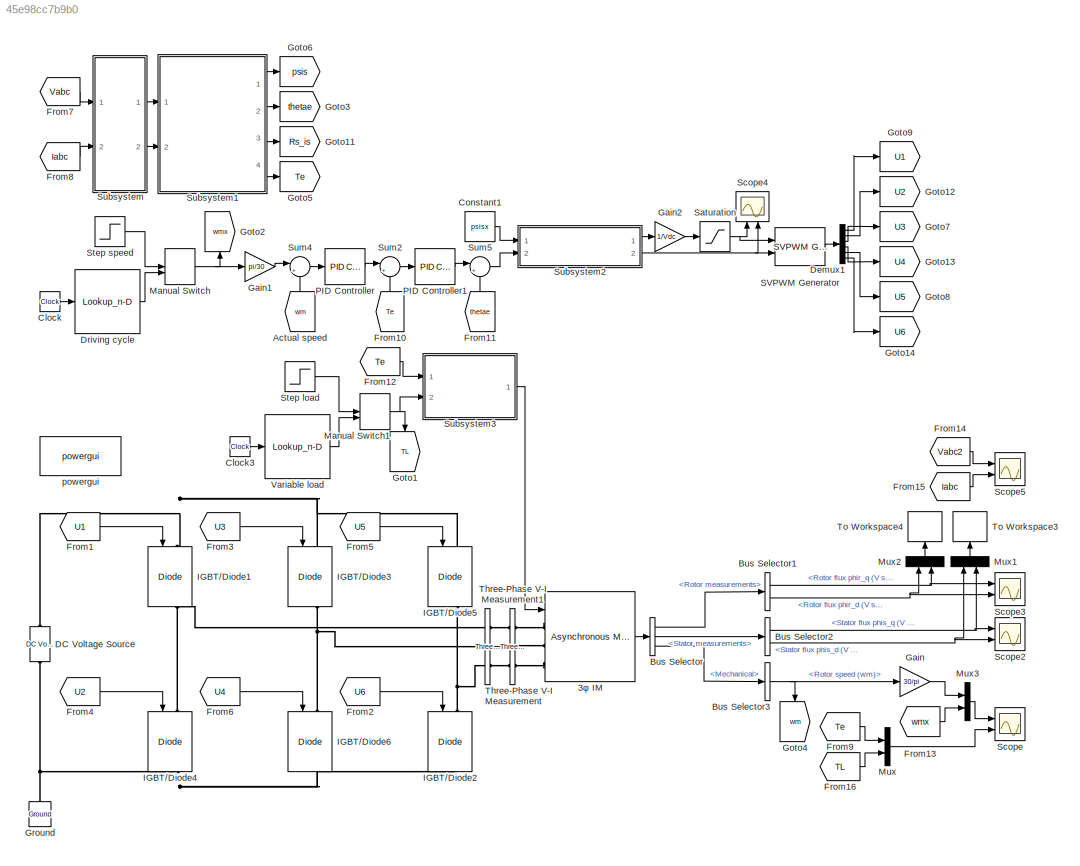
MODEL slx_45e98cc7b9b0
KIND model
CONFIG InitFcn = Ts=10e-7;\npsisx=0.996;\nVdc=600;\nTs_SVPWM=1e-4;
CONFIG StopFcn = plot(fs(:,1),fs(:,2),'-r',fr(:,1),fr(:,2),'-b');\naxis equal;\ngrid on;\ntitle('Flux Space Vector Trajectory');\ntext(.8,-.85,'rotor flux','color','b');\ntext(-1,-.85,'stator flux','color','r');
BLOCK [Reference] 3φ IM  REF=powerlib/Machines/Asynchronous Machine
SI Units
  Cage1 = [0.4155 0.002066]
  Cage2 = [0.4168 0.0003495]
  InitialConditions = [1 0 0 0 0 0 0 0]
  IterativeDiscreteModel = Trapezoidal non iterative
  IterativeModel = Trapezoidal non iterative
  Lm = 0.1722
  LoadFlowParameters = 1492000
  MeasurementBus = off
  Mechanical = [0.0131 0.002985 2]
  MechanicalLoad = Speed w
  NominalParameters = [4000 400 50]
  Pmec = 1.492e+006
  PolePairs = 2
  Ports = [1, 1, 0, 0, 0, 3]
  PresetModel = 15:  5.4 HP (4KW)   400 V  50Hz 1430 RPM
  ReferenceFrame = Stationary
  Rotor = [1.395 0.005839]
  RotorType = Squirrel-cage
  Saturation = [14.03593122, 27.81365428, 53.79336849, 72.68890987, 97.98006896, 148.6815601, 215.7428561, 302.9841135, 428.7778367 ; 230, 322, 414, 460, 506, 552, 598, 644, 690]
  ShowDetailedParameters = on
  SimulateSaturation = off
  SourceBlock = powerlib/Machines/Asynchronous Machine\nSI Units
  SourceType = Asynchronous Machine
  Stator = [1.405 0.005839]
  TsBlock = -1
  TsPowergui = 0
  Units = SI
BLOCK [From] Actual speed
  GotoTag = wm
BLOCK [BusSelector] Bus Selector
  OutputSignals = Rotor measurements,Stator measurements,Mechanical
  Ports = [1, 3]
BLOCK [BusSelector] Bus Selector1
  OutputSignals = Rotor flux phir_q (V s),Rotor flux phir_d (V s)
  Ports = [1, 2]
BLOCK [BusSelector] Bus Selector2
  OutputSignals = Stator flux phis_q (V s),Stator flux phis_d (V s)
  Ports = [1, 2]
BLOCK [BusSelector] Bus Selector3
  OutputSignals = Rotor speed (wm)
  Ports = [1, 1]
BLOCK [Clock] Clock
BLOCK [Clock] Clock3
BLOCK [Constant] Constant1
  Value = psisx
BLOCK [Reference] DC Voltage Source  REF=powerlib/Electrical
Sources/DC Voltage Source
  Amplitude = Vdc
  Measurements = None
  Ports = [0, 0, 0, 0, 0, 1, 1]
  SourceBlock = powerlib/Electrical\nSources/DC Voltage Source
  SourceType = DC Voltage Source
BLOCK [Demux] Demux1
  DisplayOption = bar
  Outputs = 6
  Ports = [1, 6]
BLOCK [Lookup_n-D] Driving cycle
  BreakpointsForDimension1 = [0 1 2 5 5.001 8 8.001 10 11 12]/2
  NumberOfTableDimensions = 1
  Ports = [1, 1]
  RndMeth = Simplest
  Table = [0 0 480 480 1430 1430 0 0 480 480]
BLOCK [From] From1
  GotoTag = U1
BLOCK [From] From10
  GotoTag = Te
BLOCK [From] From11
  GotoTag = thetae
BLOCK [From] From12
  GotoTag = Te
BLOCK [From] From13
  GotoTag = wmx
BLOCK [From] From14
  GotoTag = Vabc2
  TagVisibility = global
BLOCK [From] From15
  GotoTag = Iabc
  TagVisibility = global
BLOCK [From] From16
  GotoTag = TL
BLOCK [From] From2
  GotoTag = U6
BLOCK [From] From3
  GotoTag = U3
BLOCK [From] From4
  GotoTag = U2
BLOCK [From] From5
  GotoTag = U5
BLOCK [From] From6
  GotoTag = U4
BLOCK [From] From7
  GotoTag = Vabc
  TagVisibility = global
BLOCK [From] From8
  GotoTag = Iabc
  TagVisibility = global
BLOCK [From] From9
  GotoTag = Te
BLOCK [Gain] Gain
  Gain = 30/pi
  OutDataTypeStr = Inherit: Inherit via internal rule
  ParamDataTypeStr = Inherit: Inherit via internal rule
  SaturateOnIntegerOverflow = off
BLOCK [Gain] Gain1
  Gain = pi/30
  OutDataTypeStr = Inherit: Inherit via internal rule
  ParamDataTypeStr = Inherit: Inherit via internal rule
  SaturateOnIntegerOverflow = off
BLOCK [Gain] Gain2
  Gain = 1/Vdc
  OutDataTypeStr = Inherit: Inherit via internal rule
  ParamDataTypeStr = Inherit: Inherit via internal rule
  SaturateOnIntegerOverflow = off
BLOCK [Goto] Goto1
  GotoTag = TL
BLOCK [Goto] Goto11
  GotoTag = Rs_is
  TagVisibility = global
BLOCK [Goto] Goto12
  GotoTag = U2
BLOCK [Goto] Goto13
  GotoTag = U4
BLOCK [Goto] Goto14
  GotoTag = U6
BLOCK [Goto] Goto2
  GotoTag = wmx
BLOCK [Goto] Goto3
  GotoTag = thetae
BLOCK [Goto] Goto4
  GotoTag = wm
BLOCK [Goto] Goto5
  GotoTag = Te
BLOCK [Goto] Goto6
  GotoTag = psis
  TagVisibility = global
BLOCK [Goto] Goto7
  GotoTag = U3
BLOCK [Goto] Goto8
  GotoTag = U5
BLOCK [Goto] Goto9
  GotoTag = U1
BLOCK [Reference] Ground  REF=powerlib/Elements/Ground
  LConnTagsString = a
  Ports = [0, 0, 0, 0, 0, 1]
  SourceBlock = powerlib/Elements/Ground
  SourceType = Ground
BLOCK [Reference] IGBT//Diode1  REF=powerlib/Power
Electronics/IGBT//Diode
  Cs = inf
  Measurements = on
  Ports = [1, 1, 0, 0, 0, 1, 1]
  Ron = 1e-3
  Rs = 1e5
  SourceBlock = powerlib/Power\nElectronics/IGBT//Diode
  SourceType = IGBT/Diode
BLOCK [Reference] IGBT//Diode2  REF=powerlib/Power
Electronics/IGBT//Diode
  Cs = inf
  Measurements = on
  Ports = [1, 1, 0, 0, 0, 1, 1]
  Ron = 1e-3
  Rs = 1e5
  SourceBlock = powerlib/Power\nElectronics/IGBT//Diode
  SourceType = IGBT/Diode
BLOCK [Reference] IGBT//Diode3  REF=powerlib/Power
Electronics/IGBT//Diode
  Cs = inf
  Measurements = on
  Ports = [1, 1, 0, 0, 0, 1, 1]
  Ron = 1e-3
  Rs = 1e5
  SourceBlock = powerlib/Power\nElectronics/IGBT//Diode
  SourceType = IGBT/Diode
BLOCK [Reference] IGBT//Diode4  REF=powerlib/Power
Electronics/IGBT//Diode
  Cs = inf
  Measurements = on
  Ports = [1, 1, 0, 0, 0, 1, 1]
  Ron = 1e-3
  Rs = 1e5
  SourceBlock = powerlib/Power\nElectronics/IGBT//Diode
  SourceType = IGBT/Diode
BLOCK [Reference] IGBT//Diode5  REF=powerlib/Power
Electronics/IGBT//Diode
  Cs = inf
  Measurements = on
  Ports = [1, 1, 0, 0, 0, 1, 1]
  Ron = 1e-3
  Rs = 1e5
  SourceBlock = powerlib/Power\nElectronics/IGBT//Diode
  SourceType = IGBT/Diode
BLOCK [Reference] IGBT//Diode6  REF=powerlib/Power
Electronics/IGBT//Diode
  Cs = inf
  Measurements = on
  Ports = [1, 1, 0, 0, 0, 1, 1]
  Ron = 1e-3
  Rs = 1e5
  SourceBlock = powerlib/Power\nElectronics/IGBT//Diode
  SourceType = IGBT/Diode
BLOCK [ManualSwitch] Manual Switch
BLOCK [ManualSwitch] Manual Switch1
BLOCK [Mux] Mux
  DisplayOption = bar
  Inputs = 2
  Ports = [2, 1]
BLOCK [Mux] Mux1
  DisplayOption = bar
  Inputs = 2
  Ports = [2, 1]
BLOCK [Mux] Mux2
  DisplayOption = bar
  Inputs = 2
  Ports = [2, 1]
BLOCK [Mux] Mux3
  DisplayOption = bar
  Inputs = 2
  Ports = [2, 1]
BLOCK [Reference] PID Controller  REF=simulink/Continuous/PID Controller
  AntiWindupMode = clamping
  Controller = P
  ControllerParametersSource = internal
  D = 0
  DGainOutDataTypeStr = Inherit: Inherit via internal rule
  DOutDataTypeStr = Inherit: Inherit via internal rule
  DOutMax = []
  DOutMin = []
  DParamDataTypeStr = Inherit: Inherit via internal rule
  DParamMax = []
  DParamMin = []
  DProdOutDataTypeStr = Inherit: Inherit via internal rule
  DifferentiatorICPrevScaledInput = 0
  DifferentiatorOutDataTypeStr = Inherit: Inherit via internal rule
  DifferentiatorOutMax = []
  DifferentiatorOutMin = []
  ExternalReset = none
  FilterContinuousStateAttributes = ''
  FilterMethod = Forward Euler
  FilterOutDataTypeStr = Inherit: Inherit via internal rule
  FilterOutMax = []
  FilterOutMin = []
  FilterRTWStateStorageClass = Auto
  FilterStateMustResolveToSignalObject = off
  Form = Parallel
  I = 20
  IGainOutDataTypeStr = Inherit: Inherit via internal rule
  IOutDataTypeStr = Inherit: Inherit via internal rule
  IOutMax = []
  IOutMin = []
  IParamDataTypeStr = Inherit: Inherit via internal rule
  IParamMax = []
  IParamMin = []
  IProdOutDataTypeStr = Inherit: Inherit via internal rule
  IgnoreLimit = off
  InitialConditionForFilter = 0
  InitialConditionForIntegrator = 0
  InitialConditionSource = internal
  IntegratorContinuousStateAttributes = ''
  IntegratorMethod = Forward Euler
  IntegratorOutDataTypeStr = Inherit: Inherit via internal rule
  IntegratorOutMax = []
  IntegratorOutMin = []
  IntegratorRTWStateStorageClass = Auto
  IntegratorStateMustResolveToSignalObject = off
  Kb = 1
  KbOutDataTypeStr = Inherit: Inherit via internal rule
  KbOutMax = []
  KbOutMin = []
  KbParamDataTypeStr = Inherit: Inherit via internal rule
  KbParamMax = []
  KbParamMin = []
  Kt = 1
  KtOutDataTypeStr = Inherit: Inherit via internal rule
  KtOutMax = []
  KtOutMin = []
  KtParamDataTypeStr = Inherit: Inherit via internal rule
  KtParamMax = []
  KtParamMin = []
  LimitOutput = on
  LinearizeAsGain = on
  LockScale = off
  LowerSaturationLimit = -30
  N = 100
  NGainOutDataTypeStr = Inherit: Inherit via internal rule
  NOutDataTypeStr = Inherit: Inherit via internal rule
  NOutMax = []
  NOutMin = []
  NParamDataTypeStr = Inherit: Inherit via internal rule
  NParamMax = []
  NParamMin = []
  NProdOutDataTypeStr = Inherit: Inherit via internal rule
  P = 20
  PGainOutDataTypeStr = Inherit: Inherit via internal rule
  POutDataTypeStr = Inherit: Inherit via internal rule
  POutMax = []
  POutMin = []
  PParamDataTypeStr = Inherit: Inherit via internal rule
  PParamMax = []
  PParamMin = []
  PProdOutDataTypeStr = Inherit: Inherit via internal rule
  Ports = [1, 1]
  RndMeth = Floor
  SampleTime = -1
  SaturateOnIntegerOverflow = off
  SaturationOutDataTypeStr = Inherit: Same as input
  SaturationOutMax = []
  SaturationOutMin = []
  SourceBlock = simulink/Continuous/PID Controller
  SourceType = PID 1dof
  SumAccumDataTypeStr = Inherit: Inherit via internal rule
  SumDAccumDataTypeStr = Inherit: Inherit via internal rule
  SumDOutDataTypeStr = Inherit: Inherit via internal rule
  SumDOutMax = []
  SumDOutMin = []
  SumI1AccumDataTypeStr = Inherit: Inherit via internal rule
  SumI1OutDataTypeStr = Inherit: Inherit via internal rule
  SumI1OutMax = []
  SumI1OutMin = []
  SumI2AccumDataTypeStr = Inherit: Inherit via internal rule
  SumI2OutDataTypeStr = Inherit: Inherit via internal rule
  SumI2OutMax = []
  SumI2OutMin = []
  SumI3AccumDataTypeStr = Inherit: Inherit via internal rule
  SumI3OutDataTypeStr = Inherit: Inherit via internal rule
  SumI3OutMax = []
  SumI3OutMin = []
  SumOutDataTypeStr = Inherit: Inherit via internal rule
  SumOutMax = []
  SumOutMin = []
  TimeDomain = Continuous-time
  TrackingMode = off
  UpperSaturationLimit = 30
  UseFilter = on
  ZeroCross = on
BLOCK [Reference] PID Controller1  REF=simulink/Continuous/PID Controller
  AntiWindupMode = clamping
  Controller = PI
  ControllerParametersSource = internal
  D = 0.00005
  DGainOutDataTypeStr = Inherit: Inherit via internal rule
  DOutDataTypeStr = Inherit: Inherit via internal rule
  DOutMax = []
  DOutMin = []
  DParamDataTypeStr = Inherit: Inherit via internal rule
  DParamMax = []
  DParamMin = []
  DProdOutDataTypeStr = Inherit: Inherit via internal rule
  DifferentiatorICPrevScaledInput = 0
  DifferentiatorOutDataTypeStr = Inherit: Inherit via internal rule
  DifferentiatorOutMax = []
  DifferentiatorOutMin = []
  ExternalReset = none
  FilterContinuousStateAttributes = ''
  FilterMethod = Forward Euler
  FilterOutDataTypeStr = Inherit: Inherit via internal rule
  FilterOutMax = []
  FilterOutMin = []
  FilterRTWStateStorageClass = Auto
  FilterStateMustResolveToSignalObject = off
  Form = Parallel
  I = 1
  IGainOutDataTypeStr = Inherit: Inherit via internal rule
  IOutDataTypeStr = Inherit: Inherit via internal rule
  IOutMax = []
  IOutMin = []
  IParamDataTypeStr = Inherit: Inherit via internal rule
  IParamMax = []
  IParamMin = []
  IProdOutDataTypeStr = Inherit: Inherit via internal rule
  IgnoreLimit = off
  InitialConditionForFilter = 0
  InitialConditionForIntegrator = 0
  InitialConditionSource = internal
  IntegratorContinuousStateAttributes = ''
  IntegratorMethod = Forward Euler
  IntegratorOutDataTypeStr = Inherit: Inherit via internal rule
  IntegratorOutMax = []
  IntegratorOutMin = []
  IntegratorRTWStateStorageClass = Auto
  IntegratorStateMustResolveToSignalObject = off
  Kb = 1
  KbOutDataTypeStr = Inherit: Inherit via internal rule
  KbOutMax = []
  KbOutMin = []
  KbParamDataTypeStr = Inherit: Inherit via internal rule
  KbParamMax = []
  KbParamMin = []
  Kt = 1
  KtOutDataTypeStr = Inherit: Inherit via internal rule
  KtOutMax = []
  KtOutMin = []
  KtParamDataTypeStr = Inherit: Inherit via internal rule
  KtParamMax = []
  KtParamMin = []
  LimitOutput = on
  LinearizeAsGain = on
  LockScale = off
  LowerSaturationLimit = -pi/2
  N = 100
  NGainOutDataTypeStr = Inherit: Inherit via internal rule
  NOutDataTypeStr = Inherit: Inherit via internal rule
  NOutMax = []
  NOutMin = []
  NParamDataTypeStr = Inherit: Inherit via internal rule
  NParamMax = []
  NParamMin = []
  NProdOutDataTypeStr = Inherit: Inherit via internal rule
  P = 0.005
  PGainOutDataTypeStr = Inherit: Inherit via internal rule
  POutDataTypeStr = Inherit: Inherit via internal rule
  POutMax = []
  POutMin = []
  PParamDataTypeStr = Inherit: Inherit via internal rule
  PParamMax = []
  PParamMin = []
  PProdOutDataTypeStr = Inherit: Inherit via internal rule
  Ports = [1, 1]
  RndMeth = Floor
  SampleTime = -1
  SaturateOnIntegerOverflow = off
  SaturationOutDataTypeStr = Inherit: Same as input
  SaturationOutMax = []
  SaturationOutMin = []
  SourceBlock = simulink/Continuous/PID Controller
  SourceType = PID 1dof
  SumAccumDataTypeStr = Inherit: Inherit via internal rule
  SumDAccumDataTypeStr = Inherit: Inherit via internal rule
  SumDOutDataTypeStr = Inherit: Inherit via internal rule
  SumDOutMax = []
  SumDOutMin = []
  SumI1AccumDataTypeStr = Inherit: Inherit via internal rule
  SumI1OutDataTypeStr = Inherit: Inherit via internal rule
  SumI1OutMax = []
  SumI1OutMin = []
  SumI2AccumDataTypeStr = Inherit: Inherit via internal rule
  SumI2OutDataTypeStr = Inherit: Inherit via internal rule
  SumI2OutMax = []
  SumI2OutMin = []
  SumI3AccumDataTypeStr = Inherit: Inherit via internal rule
  SumI3OutDataTypeStr = Inherit: Inherit via internal rule
  SumI3OutMax = []
  SumI3OutMin = []
  SumOutDataTypeStr = Inherit: Inherit via internal rule
  SumOutMax = []
  SumOutMin = []
  TimeDomain = Continuous-time
  TrackingMode = off
  UpperSaturationLimit = pi/2
  UseFilter = on
  ZeroCross = on
BLOCK [Reference] SVPWM Generator  REF=powerlib_meascontrol/Pulse & Signal
Generators/SVPWM Generator
(2-Level)
  Fc = 1/Ts_SVPWM
  InputType = Magnitude-Angle (rad)
  ParUref = [0.8 -30 50]
  Ports = [2, 1]
  SourceBlock = powerlib_meascontrol/Pulse & Signal\nGenerators/SVPWM Generator\n(2-Level)
  SourceType = SVPWM Generator (2-Level)
  SwitchingPattern = Pattern #1
  Ts = Ts
BLOCK [Saturate] Saturation
  InputPortMap = u0
  LowerLimit = 0
  Ports = [1, 1]
  UpperLimit = 1
BLOCK [Scope] Scope
  DataFormat = StructureWithTime
  Decimation = 1
  Floating = off
  Grid = on
  LimitDataPoints = off
  MaxDataPoints = 5000
  NumInputPorts = 2
  Ports = [2]
  SampleInput = off
  SampleTime = -1
  SaveName = ScopeData1
  SaveToWorkspace = off
  ShowLegends = off
  TickLabels = OneTimeTick
  TimeRange = auto
  YMax = 1350.00009~34.5966
  YMin = -150.00082~-3.93819
  ZoomMode = on
BLOCK [Scope] Scope2
  DataFormat = StructureWithTime
  Decimation = 1
  Floating = off
  Grid = on
  LimitDataPoints = off
  MaxDataPoints = 5000
  NumInputPorts = 2
  Ports = [2]
  SampleInput = off
  SampleTime = -1
  SaveName = ScopeData2
  SaveToWorkspace = off
  ShowLegends = off
  TickLabels = OneTimeTick
  TimeRange = auto
  YMax = 1.24881~1.24881
  YMin = -1.24882~-1.24882
  ZoomMode = on
BLOCK [Scope] Scope3
  DataFormat = StructureWithTime
  Decimation = 1
  Floating = off
  Grid = on
  LimitDataPoints = off
  MaxDataPoints = 5000
  NumInputPorts = 2
  Ports = [2]
  SampleInput = off
  SampleTime = -1
  SaveName = ScopeData3
  SaveToWorkspace = off
  ShowLegends = off
  TickLabels = OneTimeTick
  TimeRange = auto
  YMax = 1.20224~1.20224
  YMin = -1.20226~-1.20226
  ZoomMode = on
BLOCK [Scope] Scope4
  DataFormat = StructureWithTime
  Decimation = 1
  Floating = off
  Grid = on
  LimitDataPoints = off
  MaxDataPoints = 5000
  NumInputPorts = 2
  Ports = [2]
  SampleInput = off
  SampleTime = -1
  SaveName = ScopeData2
  SaveToWorkspace = off
  ShowLegends = off
  TickLabels = OneTimeTick
  TimeRange = auto
  YMax = 1.125~3.92699
  YMin = -0.12499~-3.92698
  ZoomMode = on
BLOCK [Scope] Scope5
  DataFormat = StructureWithTime
  Decimation = 1
  Floating = off
  Grid = on
  LimitDataPoints = off
  MaxDataPoints = 5e4
  NumInputPorts = 2
  Ports = [2]
  SampleInput = off
  SampleTime = -1
  SaveName = ScopeData1
  SaveToWorkspace = off
  ShowLegends = off
  TickLabels = OneTimeTick
  TimeRange = auto
  YMax = 750.02666~15.00000
  YMin = -750.02667~-15.00000
  ZoomMode = on
BLOCK [Step] Step load
  After = 12
  SampleTime = 0
  Time = 0.9
BLOCK [Step] Step speed
  After = 1200
  SampleTime = 0
  Time = 0.15
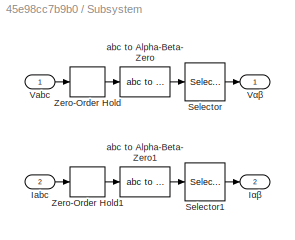
BLOCK [SubSystem] Subsystem
  FunctionWithSeparateData = off
  MaskHideContents = off
  MinAlgLoopOccurrences = off
  Opaque = off
  Ports = [2, 2]
  PropExecContextOutsideSubsystem = off
  RTWSystemCode = Auto
  RequestExecContextInheritance = off
BLOCK [Inport] Subsystem/Iabc
  IconDisplay = Port number
  Port = 2
BLOCK [Outport] Subsystem/Iαβ
  IconDisplay = Port number
  Port = 2
BLOCK [Selector] Subsystem/Selector
  IndexOptions = Index vector (dialog)
  Indices = [1 2]
  InputPortWidth = 3
  OutputSizes = 1
  Ports = [1, 1]
BLOCK [Selector] Subsystem/Selector1
  IndexOptions = Index vector (dialog)
  Indices = [1 2]
  InputPortWidth = 3
  OutputSizes = 1
  Ports = [1, 1]
BLOCK [Inport] Subsystem/Vabc
  IconDisplay = Port number
BLOCK [Outport] Subsystem/Vαβ
  IconDisplay = Port number
BLOCK [ZeroOrderHold] Subsystem/Zero-Order Hold
  SampleTime = Ts
BLOCK [ZeroOrderHold] Subsystem/Zero-Order Hold1
  SampleTime = Ts
BLOCK [Reference] Subsystem/abc to Alpha-Beta-Zero  REF=powerlib_meascontrol/Transformations/abc to
Alpha-Beta-Zero
  Ports = [1, 1]
  SourceBlock = powerlib_meascontrol/Transformations/abc to\nAlpha-Beta-Zero
  SourceType = abc to Alpha-Beta-Zero Transformation
BLOCK [Reference] Subsystem/abc to Alpha-Beta-Zero1  REF=powerlib_meascontrol/Transformations/abc to
Alpha-Beta-Zero
  Ports = [1, 1]
  SourceBlock = powerlib_meascontrol/Transformations/abc to\nAlpha-Beta-Zero
  SourceType = abc to Alpha-Beta-Zero Transformation
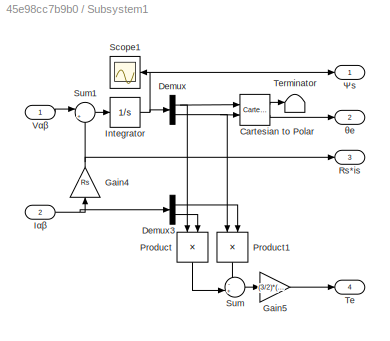
BLOCK [SubSystem] Subsystem1
  FunctionWithSeparateData = off
  MaskHideContents = off
  MinAlgLoopOccurrences = off
  Opaque = off
  Ports = [2, 4]
  PropExecContextOutsideSubsystem = off
  RTWSystemCode = Auto
  RequestExecContextInheritance = off
BLOCK [Reference] Subsystem1/Cartesian to Polar  REF=simulink_extras/Transformations/Cartesian to
Polar
  Ports = [2, 2]
  SourceBlock = simulink_extras/Transformations/Cartesian to\nPolar
  SourceType = Cart2Polar
BLOCK [Demux] Subsystem1/Demux
  DisplayOption = bar
  Outputs = 2
  Ports = [1, 2]
BLOCK [Demux] Subsystem1/Demux3
  DisplayOption = bar
  Outputs = 2
  Ports = [1, 2]
BLOCK [Gain] Subsystem1/Gain4
  Gain = Rs
  OutDataTypeStr = Inherit: Inherit via internal rule
  ParamDataTypeStr = Inherit: Inherit via internal rule
  SaturateOnIntegerOverflow = off
BLOCK [Gain] Subsystem1/Gain5
  Gain = (3/2)*(4/2)
  OutDataTypeStr = Inherit: Inherit via internal rule
  ParamDataTypeStr = Inherit: Inherit via internal rule
  SaturateOnIntegerOverflow = off
BLOCK [Integrator] Subsystem1/Integrator
  Ports = [1, 1]
BLOCK [Inport] Subsystem1/Iαβ
  IconDisplay = Port number
  Port = 2
BLOCK [Product] Subsystem1/Product
  InputSameDT = off
  OutDataTypeStr = Inherit: Inherit via internal rule
  Ports = [2, 1]
  RndMeth = Floor
  SaturateOnIntegerOverflow = off
BLOCK [Product] Subsystem1/Product1
  InputSameDT = off
  OutDataTypeStr = Inherit: Inherit via internal rule
  Ports = [2, 1]
  RndMeth = Floor
  SaturateOnIntegerOverflow = off
BLOCK [Outport] Subsystem1/Rs*is
  IconDisplay = Port number
  Port = 3
BLOCK [Scope] Subsystem1/Scope1
  DataFormat = StructureWithTime
  Decimation = 1
  Floating = off
  Grid = on
  LimitDataPoints = off
  MaxDataPoints = 5000
  NumInputPorts = 1
  Ports = [1]
  SampleInput = off
  SampleTime = -1
  SaveName = ScopeData1
  SaveToWorkspace = off
  ShowLegends = off
  TickLabels = OneTimeTick
  TimeRange = auto
  YMax = 1.24822
  YMin = -1.24748
  ZoomMode = on
BLOCK [Sum] Subsystem1/Sum
  IconShape = round
  InputSameDT = off
  Inputs = -+|
  OutDataTypeStr = Inherit: Inherit via internal rule
  Ports = [2, 1]
  SaturateOnIntegerOverflow = off
BLOCK [Sum] Subsystem1/Sum1
  IconShape = round
  InputSameDT = off
  Inputs = |+-
  OutDataTypeStr = Inherit: Inherit via internal rule
  Ports = [2, 1]
  SaturateOnIntegerOverflow = off
BLOCK [Outport] Subsystem1/Te
  IconDisplay = Port number
  Port = 4
BLOCK [Terminator] Subsystem1/Terminator
BLOCK [Inport] Subsystem1/Vαβ
  IconDisplay = Port number
BLOCK [Outport] Subsystem1/Ψs
  IconDisplay = Port number
BLOCK [Outport] Subsystem1/θe
  IconDisplay = Port number
  Port = 2
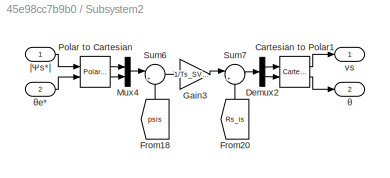
BLOCK [SubSystem] Subsystem2
  FunctionWithSeparateData = off
  MaskHideContents = off
  MinAlgLoopOccurrences = off
  Opaque = off
  Ports = [2, 2]
  PropExecContextOutsideSubsystem = off
  RTWSystemCode = Auto
  RequestExecContextInheritance = off
BLOCK [Reference] Subsystem2/Cartesian to Polar1  REF=simulink_extras/Transformations/Cartesian to
Polar
  Ports = [2, 2]
  SourceBlock = simulink_extras/Transformations/Cartesian to\nPolar
  SourceType = Cart2Polar
BLOCK [Demux] Subsystem2/Demux2
  DisplayOption = bar
  Outputs = 2
  Ports = [1, 2]
BLOCK [From] Subsystem2/From18
  GotoTag = psis
  TagVisibility = global
BLOCK [From] Subsystem2/From20
  GotoTag = Rs_is
  TagVisibility = global
BLOCK [Gain] Subsystem2/Gain3
  Gain = 1/Ts_SVPWM
  OutDataTypeStr = Inherit: Inherit via internal rule
  ParamDataTypeStr = Inherit: Inherit via internal rule
  SaturateOnIntegerOverflow = off
BLOCK [Mux] Subsystem2/Mux4
  DisplayOption = bar
  Inputs = 2
  Ports = [2, 1]
BLOCK [Reference] Subsystem2/Polar to Cartesian  REF=simulink_extras/Transformations/Polar to
Cartesian
  Ports = [2, 2]
  SourceBlock = simulink_extras/Transformations/Polar to\nCartesian
  SourceType = Polar2Cart
BLOCK [Sum] Subsystem2/Sum6
  IconShape = round
  InputSameDT = off
  Inputs = |+-
  OutDataTypeStr = Inherit: Inherit via internal rule
  Ports = [2, 1]
  SaturateOnIntegerOverflow = off
BLOCK [Sum] Subsystem2/Sum7
  IconShape = round
  InputSameDT = off
  Inputs = |++
  OutDataTypeStr = Inherit: Inherit via internal rule
  Ports = [2, 1]
  SaturateOnIntegerOverflow = off
BLOCK [Outport] Subsystem2/vs
  IconDisplay = Port number
BLOCK [Inport] Subsystem2/|Ψs*|
  IconDisplay = Port number
BLOCK [Outport] Subsystem2/θ
  IconDisplay = Port number
  Port = 2
BLOCK [Inport] Subsystem2/θe*
  IconDisplay = Port number
  Port = 2
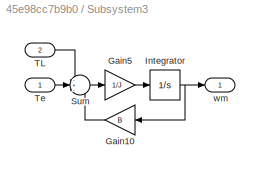
BLOCK [SubSystem] Subsystem3
  FunctionWithSeparateData = off
  MaskHideContents = off
  MinAlgLoopOccurrences = off
  Opaque = off
  Ports = [2, 1]
  PropExecContextOutsideSubsystem = off
  RTWSystemCode = Auto
  RequestExecContextInheritance = off
BLOCK [Gain] Subsystem3/Gain10
  Gain = B
  OutDataTypeStr = Inherit: Inherit via internal rule
  ParamDataTypeStr = Inherit: Inherit via internal rule
  SaturateOnIntegerOverflow = off
BLOCK [Gain] Subsystem3/Gain5
  Gain = 1/J
  OutDataTypeStr = Inherit: Inherit via internal rule
  ParamDataTypeStr = Inherit: Inherit via internal rule
  SaturateOnIntegerOverflow = off
BLOCK [Integrator] Subsystem3/Integrator
  Ports = [1, 1]
BLOCK [Sum] Subsystem3/Sum
  IconShape = round
  InputSameDT = off
  Inputs = -+-
  OutDataTypeStr = Inherit: Inherit via internal rule
  Ports = [3, 1]
  SaturateOnIntegerOverflow = off
BLOCK [Inport] Subsystem3/TL
  IconDisplay = Port number
  Port = 2
BLOCK [Inport] Subsystem3/Te
  IconDisplay = Port number
BLOCK [Outport] Subsystem3/wm
  IconDisplay = Port number
BLOCK [Sum] Sum2
  IconShape = round
  InputSameDT = off
  Inputs = |+-
  OutDataTypeStr = Inherit: Inherit via internal rule
  Ports = [2, 1]
  SaturateOnIntegerOverflow = off
BLOCK [Sum] Sum4
  IconShape = round
  Inputs = |+-
  Ports = [2, 1]
BLOCK [Sum] Sum5
  IconShape = round
  InputSameDT = off
  Inputs = |++
  OutDataTypeStr = Inherit: Inherit via internal rule
  Ports = [2, 1]
  SaturateOnIntegerOverflow = off
BLOCK [Reference] Three-Phase V-I Measurement  REF=powerlib/Measurements/Three-Phase
V-I Measurement
  CurrentMeasurement = yes
  Ipu = off
  LabelI = Iabc
  LabelV = Vabc
  OutputType = Complex
  PSBequivalent = 0
  Pbase = 100e6
  PhasorSimulation = off
  Ports = [0, 0, 0, 0, 0, 3, 3]
  SetLabelI = on
  SetLabelV = on
  SourceBlock = powerlib/Measurements/Three-Phase\nV-I Measurement
  SourceType = Three-Phase VI Measurement
  Vbase = 500e3
  VoltageMeasurement = phase-to-ground
  Vpu = off
  VpuLL = off
BLOCK [Reference] Three-Phase V-I Measurement1  REF=powerlib/Measurements/Three-Phase
V-I Measurement
  CurrentMeasurement = no
  Ipu = off
  LabelI = Iabc
  LabelV = Vabc2
  OutputType = Complex
  PSBequivalent = 0
  Pbase = 100e6
  PhasorSimulation = off
  Ports = [0, 0, 0, 0, 0, 3, 3]
  SetLabelI = on
  SetLabelV = on
  SourceBlock = powerlib/Measurements/Three-Phase\nV-I Measurement
  SourceType = Three-Phase VI Measurement
  Vbase = 500e3
  VoltageMeasurement = phase-to-phase
  Vpu = off
  VpuLL = off
BLOCK [ToWorkspace] To Workspace3
  Decimation = 2
  MaxDataPoints = inf
  Ports = [1]
  SampleTime = -1
  VariableName = fs
BLOCK [ToWorkspace] To Workspace4
  Decimation = 2
  MaxDataPoints = inf
  Ports = [1]
  SampleTime = -1
  VariableName = fr
BLOCK [Lookup_n-D] Variable load
  BreakpointsForDimension1 = [0 3 4 12 13 14 17 18 20 21]/2
  NumberOfTableDimensions = 1
  Ports = [1, 1]
  RndMeth = Simplest
  Table = [0 0 6 6 12 12 -6 -6 6 6]
BLOCK [Reference] powergui  REF=powerlib/powergui
  CurrentSourceSwitches = off
  DisableRonSwitches = off
  DisableSnubberDevices = off
  DisableVfSwitches = off
  DisplayEquations = off
  DisplayStyle = 1
  EnableUseOfTLC = off
  ErrMax = 1e-4
  ExternalGateDelay = off
  Frange = [0:2:500]
  FreqAxis = off
  FunctionMessages = off
  HookPort = off
  Interpol = off
  Iterations = 50
  MaxFrequency = 1000
  Pbase = 100e6
  Ports = []
  Priority = 1
  ResistiveCurrentMeasurement = off
  RestoreLinks = warning
  RmsSteady = 1
  SPID = off
  SampleTime = Ts
  ShowGrid = off
  SolverType = Tustin/Backward Euler (TBE)
  SourceBlock = powerlib/powergui
  SourceType = PSB option menu block
  StartTime = 0.0
  SwTol = 0
  Ts = 100
  UnitsV = kV
  UnitsW = MW
  Xlog = on
  Ylog = off
  ZoomFFT = off
  buscounter = 0
  cycles = 1
  display = off
  echomessages = off
  frequency = 60
  frequencyindice = 50
  frequencyindicesteady = 1
  fundamental = 60
  methode = off
  save = off
  structure = 0
  variable = ZData
  x0status = blocks
LINE 3φ IM:1 -> Bus Selector:1
LINE Actual speed:1 -> Sum4:2
NET Bus Selector1:1 -> Mux2:2, Scope3:1
NET Bus Selector1:2 -> Mux2:1, Scope3:2
NET Bus Selector2:1 -> Mux1:2, Scope2:1
NET Bus Selector2:2 -> Mux1:1, Scope2:2
NET Bus Selector3:1 -> Gain:1, Goto4:1
LINE Bus Selector:1 -> Bus Selector1:1
LINE Bus Selector:2 -> Bus Selector2:1
LINE Bus Selector:3 -> Bus Selector3:1
LINE Clock3:1 -> Variable load:1
LINE Clock:1 -> Driving cycle:1
LINE Constant1:1 -> Subsystem2:1
LINE Demux1:1 -> Goto9:1
LINE Demux1:2 -> Goto12:1
LINE Demux1:3 -> Goto7:1
LINE Demux1:4 -> Goto13:1
LINE Demux1:5 -> Goto8:1
LINE Demux1:6 -> Goto14:1
LINE Driving cycle:1 -> Manual Switch:2
LINE From10:1 -> Sum2:2
LINE From11:1 -> Sum5:2
LINE From12:1 -> Subsystem3:1
LINE From13:1 -> Mux3:2
LINE From14:1 -> Scope5:1
LINE From15:1 -> Scope5:2
LINE From16:1 -> Mux:2
LINE From1:1 -> IGBT//Diode1:1
LINE From2:1 -> IGBT//Diode2:1
LINE From3:1 -> IGBT//Diode3:1
LINE From4:1 -> IGBT//Diode4:1
LINE From5:1 -> IGBT//Diode5:1
LINE From6:1 -> IGBT//Diode6:1
LINE From7:1 -> Subsystem:1
LINE From8:1 -> Subsystem:2
LINE From9:1 -> Mux:1
LINE Gain1:1 -> Sum4:1
LINE Gain2:1 -> Saturation:1
LINE Gain:1 -> Mux3:1
NET Manual Switch1:1 -> Goto1:1, Subsystem3:2
NET Manual Switch:1 -> Gain1:1, Goto2:1
LINE Mux1:1 -> To Workspace3:1
LINE Mux2:1 -> To Workspace4:1
LINE Mux3:1 -> Scope:1
LINE Mux:1 -> Scope:2
LINE PID Controller1:1 -> Sum5:1
LINE PID Controller:1 -> Sum2:1
LINE SVPWM Generator:1 -> Demux1:1
NET Saturation:1 -> SVPWM Generator:1, Scope4:1
LINE Step load:1 -> Manual Switch1:1
LINE Step speed:1 -> Manual Switch:1
LINE Subsystem/Iabc:1 -> Subsystem/Zero-Order Hold1:1
LINE Subsystem/Selector1:1 -> Subsystem/Iαβ:1
LINE Subsystem/Selector:1 -> Subsystem/Vαβ:1
LINE Subsystem/Vabc:1 -> Subsystem/Zero-Order Hold:1
LINE Subsystem/Zero-Order Hold1:1 -> Subsystem/abc to Alpha-Beta-Zero1:1
LINE Subsystem/Zero-Order Hold:1 -> Subsystem/abc to Alpha-Beta-Zero:1
LINE Subsystem/abc to Alpha-Beta-Zero1:1 -> Subsystem/Selector1:1
LINE Subsystem/abc to Alpha-Beta-Zero:1 -> Subsystem/Selector:1
LINE Subsystem1/Cartesian to Polar:1 -> Subsystem1/Terminator:1
LINE Subsystem1/Cartesian to Polar:2 -> Subsystem1/θe:1
LINE Subsystem1/Demux3:1 -> Subsystem1/Product1:2
LINE Subsystem1/Demux3:2 -> Subsystem1/Product:2
NET Subsystem1/Demux:1 -> Subsystem1/Cartesian to Polar:1, Subsystem1/Product:1
NET Subsystem1/Demux:2 -> Subsystem1/Cartesian to Polar:2, Subsystem1/Product1:1
NET Subsystem1/Gain4:1 -> Subsystem1/Rs*is:1, Subsystem1/Sum1:2
LINE Subsystem1/Gain5:1 -> Subsystem1/Te:1
NET Subsystem1/Integrator:1 -> Subsystem1/Demux:1, Subsystem1/Scope1:1, Subsystem1/Ψs:1
NET Subsystem1/Iαβ:1 -> Subsystem1/Demux3:1, Subsystem1/Gain4:1
LINE Subsystem1/Product1:1 -> Subsystem1/Sum:1
LINE Subsystem1/Product:1 -> Subsystem1/Sum:2
LINE Subsystem1/Sum1:1 -> Subsystem1/Integrator:1
LINE Subsystem1/Sum:1 -> Subsystem1/Gain5:1
LINE Subsystem1/Vαβ:1 -> Subsystem1/Sum1:1
LINE Subsystem1:1 -> Goto6:1
LINE Subsystem1:2 -> Goto3:1
LINE Subsystem1:3 -> Goto11:1
LINE Subsystem1:4 -> Goto5:1
LINE Subsystem2/Cartesian to Polar1:1 -> Subsystem2/vs:1
LINE Subsystem2/Cartesian to Polar1:2 -> Subsystem2/θ:1
LINE Subsystem2/Demux2:1 -> Subsystem2/Cartesian to Polar1:1
LINE Subsystem2/Demux2:2 -> Subsystem2/Cartesian to Polar1:2
LINE Subsystem2/From18:1 -> Subsystem2/Sum6:2
LINE Subsystem2/From20:1 -> Subsystem2/Sum7:2
LINE Subsystem2/Gain3:1 -> Subsystem2/Sum7:1
LINE Subsystem2/Mux4:1 -> Subsystem2/Sum6:1
LINE Subsystem2/Polar to Cartesian:1 -> Subsystem2/Mux4:1
LINE Subsystem2/Polar to Cartesian:2 -> Subsystem2/Mux4:2
LINE Subsystem2/Sum6:1 -> Subsystem2/Gain3:1
LINE Subsystem2/Sum7:1 -> Subsystem2/Demux2:1
LINE Subsystem2/|Ψs*|:1 -> Subsystem2/Polar to Cartesian:1
LINE Subsystem2/θe*:1 -> Subsystem2/Polar to Cartesian:2
LINE Subsystem2:1 -> Gain2:1
NET Subsystem2:2 -> SVPWM Generator:2, Scope4:2
LINE Subsystem3/Gain10:1 -> Subsystem3/Sum:3
LINE Subsystem3/Gain5:1 -> Subsystem3/Integrator:1
NET Subsystem3/Integrator:1 -> Subsystem3/Gain10:1, Subsystem3/wm:1
LINE Subsystem3/Sum:1 -> Subsystem3/Gain5:1
LINE Subsystem3/TL:1 -> Subsystem3/Sum:1
LINE Subsystem3/Te:1 -> Subsystem3/Sum:2
LINE Subsystem3:1 -> 3φ IM:1
LINE Subsystem:1 -> Subsystem1:1
LINE Subsystem:2 -> Subsystem1:2
LINE Sum2:1 -> PID Controller1:1
LINE Sum4:1 -> PID Controller:1
LINE Sum5:1 -> Subsystem2:2
LINE Variable load:1 -> Manual Switch1:2
PLINE 3φ IM:LConn1 -- Three-Phase V-I Measurement1:RConn1
PLINE 3φ IM:LConn2 -- Three-Phase V-I Measurement1:RConn2
PLINE 3φ IM:LConn3 -- Three-Phase V-I Measurement1:RConn3
PNET net1: DC Voltage Source:LConn1 -- Ground:LConn1 -- IGBT//Diode2:RConn1 -- IGBT//Diode4:RConn1 -- IGBT//Diode6:RConn1
PNET net2: DC Voltage Source:RConn1 -- IGBT//Diode1:LConn1 -- IGBT//Diode3:LConn1 -- IGBT//Diode5:LConn1
PNET net3: IGBT//Diode1:RConn1 -- IGBT//Diode4:LConn1 -- Three-Phase V-I Measurement:LConn1
PNET net4: IGBT//Diode2:LConn1 -- IGBT//Diode5:RConn1 -- Three-Phase V-I Measurement:LConn3
PNET net5: IGBT//Diode3:RConn1 -- IGBT//Diode6:LConn1 -- Three-Phase V-I Measurement:LConn2
PLINE Three-Phase V-I Measurement1:LConn1 -- Three-Phase V-I Measurement:RConn1
PLINE Three-Phase V-I Measurement1:LConn2 -- Three-Phase V-I Measurement:RConn2
PLINE Three-Phase V-I Measurement1:LConn3 -- Three-Phase V-I Measurement:RConn3
note: NET lines group one-source signal fan-out (src -> all destinations, sorted); 1:1 wires keep LINE; PNET lines group multi-terminal physical nets as a canonical sorted terminal list (undirected conserving connections); 2-terminal nets keep the pairwise PLINE form
